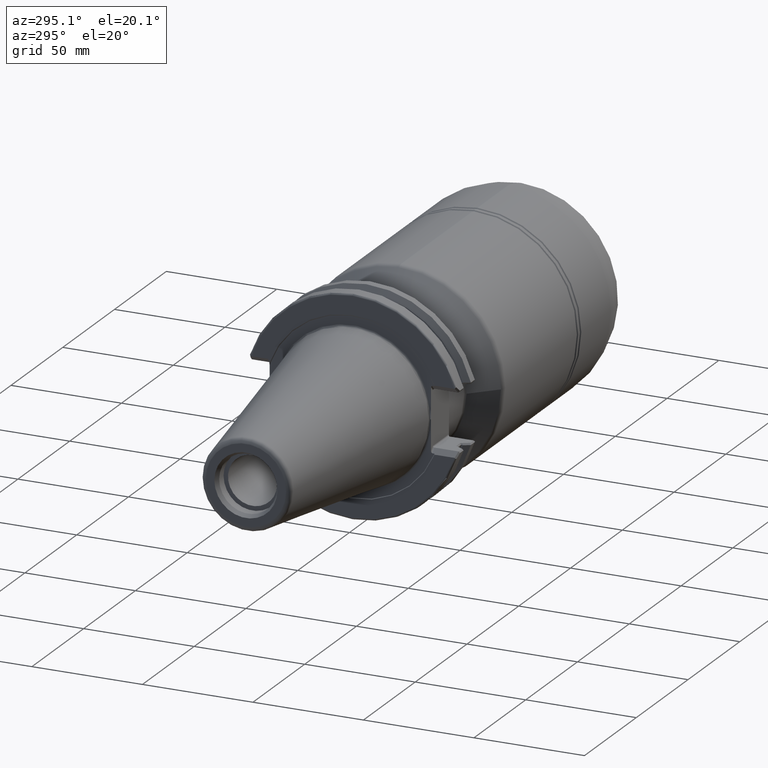
[diagram: clean part render]
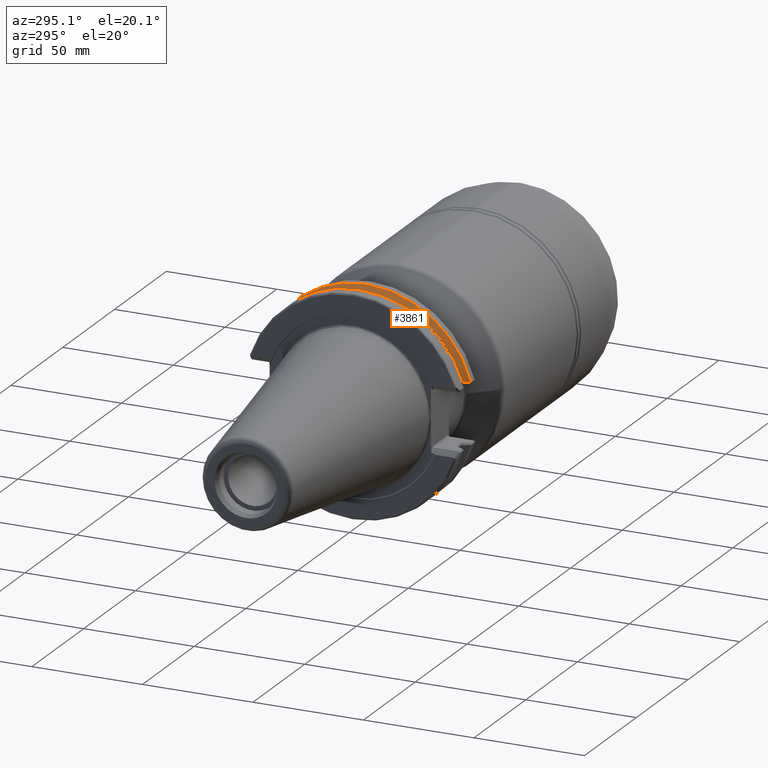
[diagram: same view with one face highlighted and labeled with its STEP entity id]
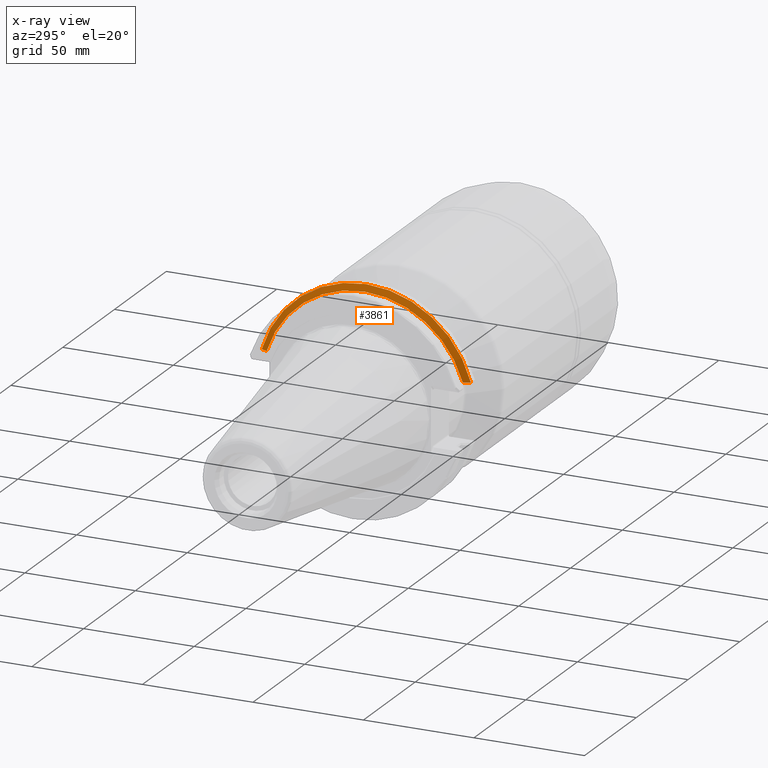
[diagram: x-ray of the same camera — body ghosted, the highlighted face saturated]
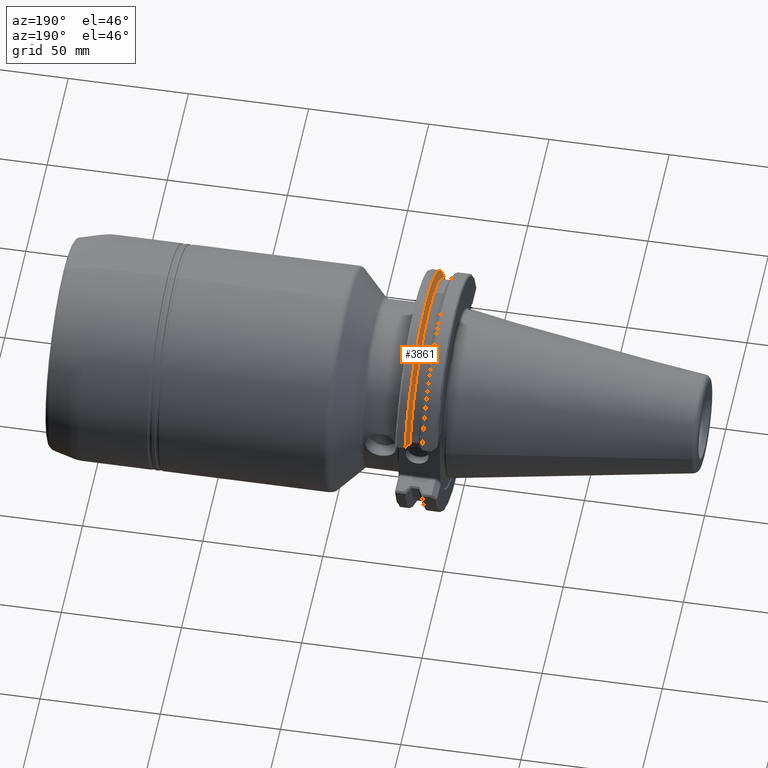
[diagram: same view with one face highlighted and labeled with its STEP entity id]
A machine part, auxiliary view. The second image highlights one B-rep face of the part: STEP entity #3861.
The next image is the same camera in x-ray: the body ghosted, the highlighted face saturated — about 0% of this face is hidden behind the body in this view.
A second angle (auxiliary view) of the same face is appended — the face is thin or edge-on in the first view.
In plain terms, the highlighted conical surface has half-angle 60 deg.
Its self-contained STEP definition (entity closure, byte-faithful):
#114 = CARTESIAN_POINT ( 'NONE',  ( 114.7009999999999900, -44.38762365646272200, 13.65056624701763100 ) ) ;
#142 = CARTESIAN_POINT ( 'NONE',  ( 116.3021667690756400, 47.30816788691202400, 13.55755905145713000 ) ) ;
#221 = ORIENTED_EDGE ( 'NONE', *, *, #2648, .T. ) ;
#422 = AXIS2_PLACEMENT_3D ( 'NONE', #2048, #2084, #2377 ) ;
#458 = VERTEX_POINT ( 'NONE', #142 ) ;
#479 = AXIS2_PLACEMENT_3D ( 'NONE', #1347, #1947, #1360 ) ;
#594 = CARTESIAN_POINT ( 'NONE',  ( 116.3021667690756400, -47.28263275233104700, 13.64634735957546500 ) ) ;
#599 = VERTEX_POINT ( 'NONE', #3933 ) ;
#737 = CARTESIAN_POINT ( 'NONE',  ( 116.3021667690756400, 7.213040712110486700E-018, 0.0000000000000000000 ) ) ;
#1052 = B_SPLINE_CURVE_WITH_KNOTS ( 'NONE', 3,
 ( #1065, #3201, #1707, #3474 ),
 .UNSPECIFIED., .F., .F.,
 ( 4, 4 ),
 ( 0.0000000000000000000, 1.000000000000000000 ),
 .UNSPECIFIED. ) ;
#1065 = CARTESIAN_POINT ( 'NONE',  ( 116.3021667690756400, 47.30816788691202400, 13.55755905145713000 ) ) ;
#1264 = CARTESIAN_POINT ( 'NONE',  ( 116.3021667690756400, -47.28263275233104700, 13.64634735957546500 ) ) ;
#1306 = FACE_OUTER_BOUND ( 'NONE', #3526, .T. ) ;
#1316 = DIRECTION ( 'NONE',  ( 0.0000000000000000000, 1.000000000000000000, 0.0000000000000000000 ) ) ;
#1347 = CARTESIAN_POINT ( 'NONE',  ( 114.7009999999999900, 7.122198362276084600E-018, 0.0000000000000000000 ) ) ;
#1360 = DIRECTION ( 'NONE',  ( 0.0000000000000000000, 1.000000000000000000, 0.0000000000000000000 ) ) ;
#1451 = ORIENTED_EDGE ( 'NONE', *, *, #2348, .T. ) ;
#1455 = VERTEX_POINT ( 'NONE', #114 ) ;
#1574 = ORIENTED_EDGE ( 'NONE', *, *, #3377, .T. ) ;
#1707 = CARTESIAN_POINT ( 'NONE',  ( 115.2182067580707100, 45.35160544678504400, 13.56143752410736300 ) ) ;
#1791 = CIRCLE ( 'NONE', #479, 46.43919780457007800 ) ;
#1947 = DIRECTION ( 'NONE',  ( 1.000000000000000000, 5.673509567454082000E-020, -0.0000000000000000000 ) ) ;
#2048 = CARTESIAN_POINT ( 'NONE',  ( 116.3021667690756400, 7.213040712110486700E-018, 0.0000000000000000000 ) ) ;
#2084 = DIRECTION ( 'NONE',  ( 1.000000000000000000, 5.673509567454082000E-020, -0.0000000000000000000 ) ) ;
#2206 = ORIENTED_EDGE ( 'NONE', *, *, #3607, .F. ) ;
#2348 = EDGE_CURVE ( 'NONE', #458, #599, #1052, .T. ) ;
#2377 = DIRECTION ( 'NONE',  ( 0.0000000000000000000, 1.000000000000000000, 0.0000000000000000000 ) ) ;
#2422 = CARTESIAN_POINT ( 'NONE',  ( 115.7519314275459000, -46.29047583825154500, 13.64713694465075700 ) ) ;
#2540 = AXIS2_PLACEMENT_3D ( 'NONE', #737, #3423, #1316 ) ;
#2648 = EDGE_CURVE ( 'NONE', #1455, #2768, #3461, .T. ) ;
#2686 = CIRCLE ( 'NONE', #422, 49.21249999999999900 ) ;
#2691 = CARTESIAN_POINT ( 'NONE',  ( 114.7009999999999900, -44.38762365646272200, 13.65056624701763100 ) ) ;
#2768 = VERTEX_POINT ( 'NONE', #1264 ) ;
#2970 = CONICAL_SURFACE ( 'NONE', #2540, 49.21249999999999900, 1.047197551196599600 ) ;
#3201 = CARTESIAN_POINT ( 'NONE',  ( 115.7519290142601800, 46.31621652156816500, 13.55947187006266200 ) ) ;
#3377 = EDGE_CURVE ( 'NONE', #599, #1455, #1791, .T. ) ;
#3423 = DIRECTION ( 'NONE',  ( 1.000000000000000000, 5.673509567454082000E-020, -0.0000000000000000000 ) ) ;
#3461 = B_SPLINE_CURVE_WITH_KNOTS ( 'NONE', 3,
 ( #2691, #3945, #2422, #594 ),
 .UNSPECIFIED., .F., .F.,
 ( 4, 4 ),
 ( 0.0000000000000000000, 1.000000000000000000 ),
 .UNSPECIFIED. ) ;
#3474 = CARTESIAN_POINT ( 'NONE',  ( 114.7009999999999900, 44.41459195275562200, 13.56256297320688700 ) ) ;
#3526 = EDGE_LOOP ( 'NONE', ( #1574, #221, #2206, #1451 ) ) ;
#3607 = EDGE_CURVE ( 'NONE', #458, #2768, #2686, .T. ) ;
#3861 = ADVANCED_FACE ( 'NONE', ( #1306 ), #2970, .T. ) ;
#3933 = CARTESIAN_POINT ( 'NONE',  ( 114.7009999999999900, 44.41459195275562200, 13.56256297320688700 ) ) ;
#3945 = CARTESIAN_POINT ( 'NONE',  ( 115.2182091723274500, -45.32539522061987500, 13.64882964516861100 ) ) ;